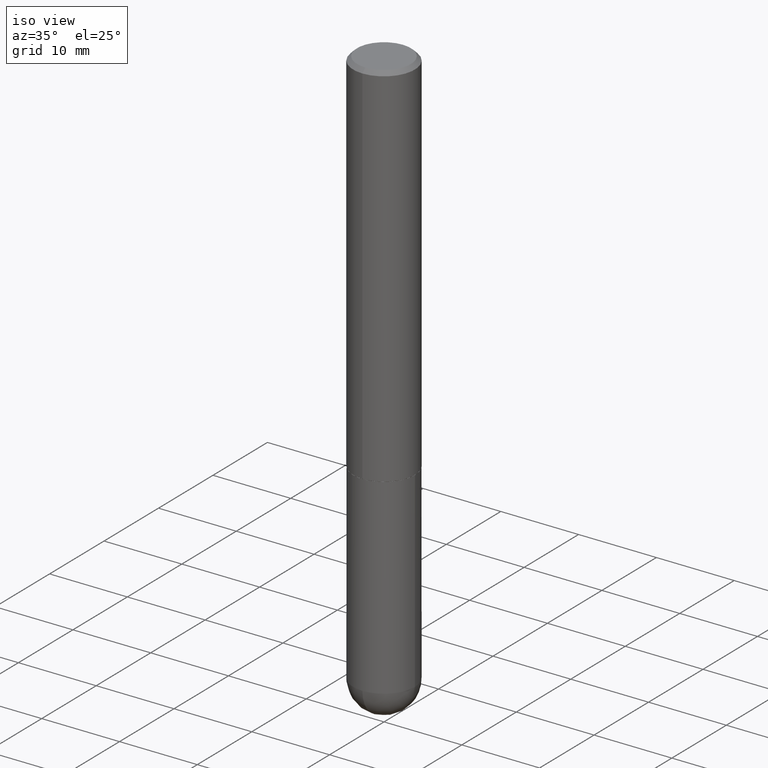
[diagram: clean part render]
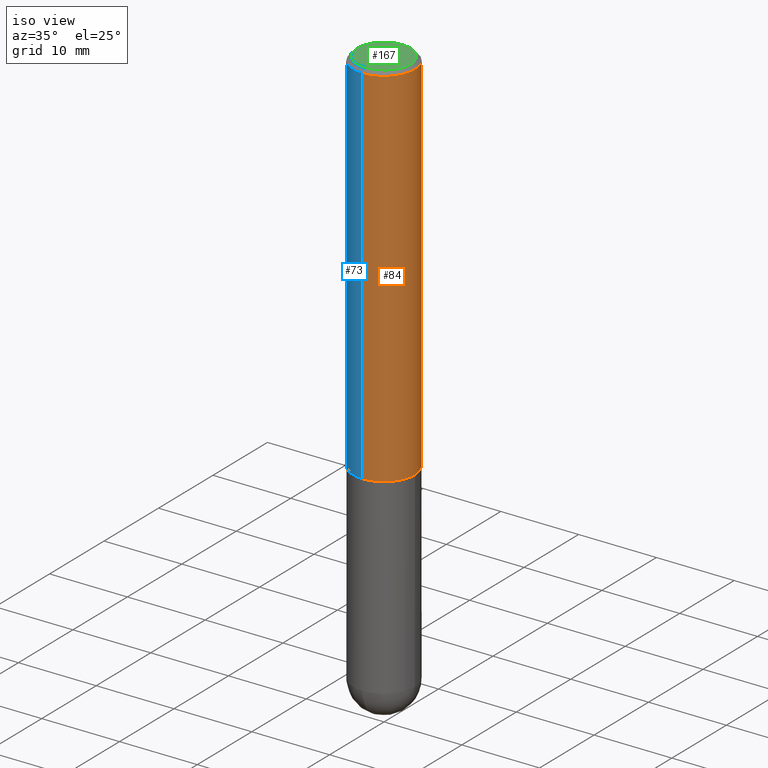
[diagram: same view with three faces highlighted in distinct colors, each labeled with its STEP entity id]
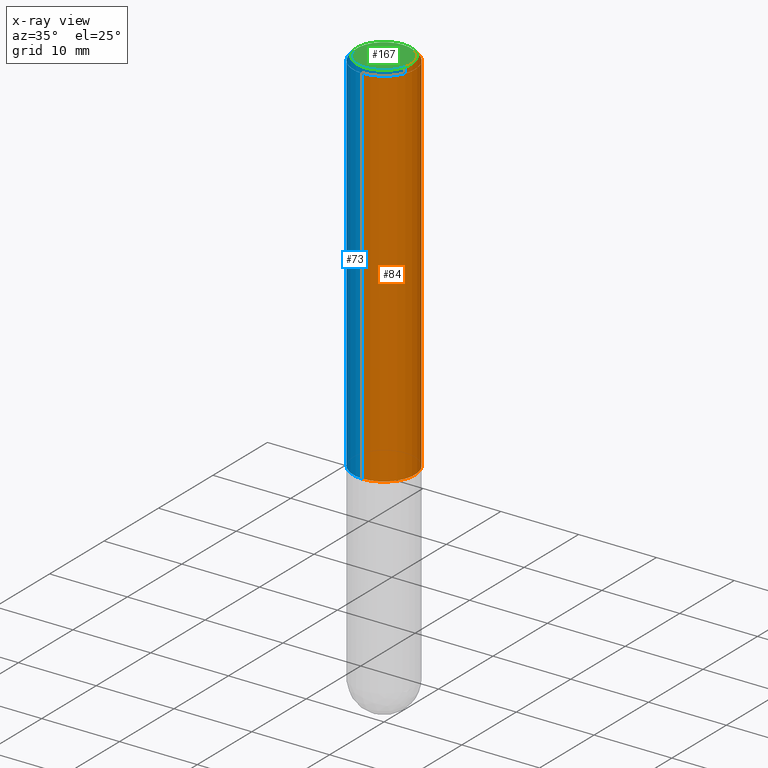
[diagram: x-ray of the same camera — body ghosted, the three highlighted faces saturated]
A machine part, iso view with three faces highlighted in distinct colors.
The next image is the same camera in x-ray (body ghosted, the three faces saturated) — at least one of them is partly hidden behind the body in this view.
Their STEP definitions:

[orange] entity #84 — the highlighted cylindrical surface (partial cylindrical patch) has radius 3.9688 mm, axis along (-0, 0, 1).
#3 = DIRECTION ( 'NONE',  ( -6.982962677686265133E-15, -1.000000000000000000, 3.496765431890258103E-15 ) ) ;
#5 = VERTEX_POINT ( 'NONE', #159 ) ;
#18 = FACE_OUTER_BOUND ( 'NONE', #134, .T. ) ;
#28 = CARTESIAN_POINT ( 'NONE',  ( 4.890760572864907283E-31, -6.983216208334460956E-17, -0.02000000000000003511 ) ) ;
#38 = VERTEX_POINT ( 'NONE', #91 ) ;
#40 = AXIS2_PLACEMENT_3D ( 'NONE', #291, #90, #312 ) ;
#54 = CARTESIAN_POINT ( 'NONE',  ( -1.091087918388479568E-15, -0.1562500000000000833, 5.455637662761290912E-16 ) ) ;
#56 = DIRECTION ( 'NONE',  ( -2.445380286432449473E-29, 3.491608104167224685E-15, 1.000000000000000000 ) ) ;
#79 = CARTESIAN_POINT ( 'NONE',  ( 1.110223024625180601E-15, 0.1562499999999936995, -1.874000000000000554 ) ) ;
#84 = ADVANCED_FACE ( 'NONE', ( #18 ), #390, .T. ) ;
#90 = DIRECTION ( 'NONE',  ( -2.445380286432449473E-29, 3.491608104167224685E-15, 1.000000000000000000 ) ) ;
#91 = CARTESIAN_POINT ( 'NONE',  ( 1.091087918388478976E-15, 0.1562499999999998612, -0.02000000000000057981 ) ) ;
#97 = ORIENTED_EDGE ( 'NONE', *, *, #389, .T. ) ;
#103 = EDGE_CURVE ( 'NONE', #298, #257, #239, .T. ) ;
#109 = CARTESIAN_POINT ( 'NONE',  ( 0.000000000000000000, 0.000000000000000000, 0.000000000000000000 ) ) ;
#121 = DIRECTION ( 'NONE',  ( -6.982962677686265133E-15, -1.000000000000000000, 3.491608104167224290E-15 ) ) ;
#134 = EDGE_LOOP ( 'NONE', ( #293, #97, #325, #357 ) ) ;
#135 = EDGE_CURVE ( 'NONE', #5, #38, #227, .T. ) ;
#144 = VECTOR ( 'NONE', #225, 39.37007874015748143 ) ;
#153 = DIRECTION ( 'NONE',  ( -2.445380286432449473E-29, 3.491608104167224685E-15, 1.000000000000000000 ) ) ;
#159 = CARTESIAN_POINT ( 'NONE',  ( -1.071952812151800821E-15, -0.1562500000000000000, -0.01999999999999948694 ) ) ;
#206 = CARTESIAN_POINT ( 'NONE',  ( -1.091087918388434997E-15, -0.1562500000000068001, -1.873999999999999444 ) ) ;
#225 = DIRECTION ( 'NONE',  ( -2.445380286432449473E-29, 3.491608104167224685E-15, 1.000000000000000000 ) ) ;
#227 = CIRCLE ( 'NONE', #386, 0.1562499999999999445 ) ;
#237 = AXIS2_PLACEMENT_3D ( 'NONE', #109, #153, #121 ) ;
#239 = CIRCLE ( 'NONE', #40, 0.1562500000000002498 ) ;
#257 = VERTEX_POINT ( 'NONE', #79 ) ;
#290 = LINE ( 'NONE', #321, #144 ) ;
#291 = CARTESIAN_POINT ( 'NONE',  ( 4.582642656774410349E-29, -6.543273587209378977E-15, -1.874000000000000110 ) ) ;
#293 = ORIENTED_EDGE ( 'NONE', *, *, #103, .T. ) ;
#298 = VERTEX_POINT ( 'NONE', #206 ) ;
#312 = DIRECTION ( 'NONE',  ( -6.982962677686265922E-15, -1.000000000000000000, 3.496765431890251398E-15 ) ) ;
#321 = CARTESIAN_POINT ( 'NONE',  ( 1.110223024625156738E-15, 0.1562500000000000833, -5.455637662761290912E-16 ) ) ;
#322 = DIRECTION ( 'NONE',  ( -2.445380286432449473E-29, 3.491608104167224685E-15, 1.000000000000000000 ) ) ;
#325 = ORIENTED_EDGE ( 'NONE', *, *, #135, .F. ) ;
#350 = EDGE_CURVE ( 'NONE', #298, #5, #363, .T. ) ;
#357 = ORIENTED_EDGE ( 'NONE', *, *, #350, .F. ) ;
#359 = VECTOR ( 'NONE', #56, 39.37007874015748143 ) ;
#363 = LINE ( 'NONE', #54, #359 ) ;
#386 = AXIS2_PLACEMENT_3D ( 'NONE', #28, #322, #3 ) ;
#389 = EDGE_CURVE ( 'NONE', #257, #38, #290, .T. ) ;
#390 = CYLINDRICAL_SURFACE ( 'NONE', #237, 0.1562500000000000833 ) ;

[blue] entity #73 — the highlighted cylindrical surface (partial cylindrical patch) has radius 3.9688 mm, axis along (-0, 0, 1).
#5 = VERTEX_POINT ( 'NONE', #159 ) ;
#26 = CIRCLE ( 'NONE', #106, 0.1562500000000002498 ) ;
#29 = DIRECTION ( 'NONE',  ( -2.445380286432449473E-29, 3.491608104167224685E-15, 1.000000000000000000 ) ) ;
#38 = VERTEX_POINT ( 'NONE', #91 ) ;
#54 = CARTESIAN_POINT ( 'NONE',  ( -1.091087918388479568E-15, -0.1562500000000000833, 5.455637662761290912E-16 ) ) ;
#56 = DIRECTION ( 'NONE',  ( -2.445380286432449473E-29, 3.491608104167224685E-15, 1.000000000000000000 ) ) ;
#57 = DIRECTION ( 'NONE',  ( -2.445380286432449473E-29, 3.491608104167224685E-15, 1.000000000000000000 ) ) ;
#67 = ORIENTED_EDGE ( 'NONE', *, *, #141, .F. ) ;
#70 = ORIENTED_EDGE ( 'NONE', *, *, #389, .F. ) ;
#73 = ADVANCED_FACE ( 'NONE', ( #122 ), #251, .T. ) ;
#79 = CARTESIAN_POINT ( 'NONE',  ( 1.110223024625180601E-15, 0.1562499999999936995, -1.874000000000000554 ) ) ;
#82 = CIRCLE ( 'NONE', #258, 0.1562499999999999445 ) ;
#91 = CARTESIAN_POINT ( 'NONE',  ( 1.091087918388478976E-15, 0.1562499999999998612, -0.02000000000000057981 ) ) ;
#96 = CARTESIAN_POINT ( 'NONE',  ( 0.000000000000000000, 0.000000000000000000, 0.000000000000000000 ) ) ;
#106 = AXIS2_PLACEMENT_3D ( 'NONE', #116, #57, #315 ) ;
#116 = CARTESIAN_POINT ( 'NONE',  ( 4.582642656774410349E-29, -6.543273587209378977E-15, -1.874000000000000110 ) ) ;
#122 = FACE_OUTER_BOUND ( 'NONE', #349, .T. ) ;
#132 = ORIENTED_EDGE ( 'NONE', *, *, #203, .T. ) ;
#141 = EDGE_CURVE ( 'NONE', #38, #5, #82, .T. ) ;
#144 = VECTOR ( 'NONE', #225, 39.37007874015748143 ) ;
#158 = DIRECTION ( 'NONE',  ( -2.445380286432449473E-29, 3.491608104167224685E-15, 1.000000000000000000 ) ) ;
#159 = CARTESIAN_POINT ( 'NONE',  ( -1.071952812151800821E-15, -0.1562500000000000000, -0.01999999999999948694 ) ) ;
#162 = AXIS2_PLACEMENT_3D ( 'NONE', #96, #29, #288 ) ;
#203 = EDGE_CURVE ( 'NONE', #257, #298, #26, .T. ) ;
#206 = CARTESIAN_POINT ( 'NONE',  ( -1.091087918388434997E-15, -0.1562500000000068001, -1.873999999999999444 ) ) ;
#225 = DIRECTION ( 'NONE',  ( -2.445380286432449473E-29, 3.491608104167224685E-15, 1.000000000000000000 ) ) ;
#251 = CYLINDRICAL_SURFACE ( 'NONE', #162, 0.1562500000000000833 ) ;
#257 = VERTEX_POINT ( 'NONE', #79 ) ;
#258 = AXIS2_PLACEMENT_3D ( 'NONE', #287, #158, #373 ) ;
#287 = CARTESIAN_POINT ( 'NONE',  ( 4.890760572864907283E-31, -6.983216208334460956E-17, -0.02000000000000003511 ) ) ;
#288 = DIRECTION ( 'NONE',  ( -6.982962677686265133E-15, -1.000000000000000000, 3.491608104167224290E-15 ) ) ;
#290 = LINE ( 'NONE', #321, #144 ) ;
#298 = VERTEX_POINT ( 'NONE', #206 ) ;
#315 = DIRECTION ( 'NONE',  ( -6.982962677686265922E-15, -1.000000000000000000, 3.496765431890251398E-15 ) ) ;
#321 = CARTESIAN_POINT ( 'NONE',  ( 1.110223024625156738E-15, 0.1562500000000000833, -5.455637662761290912E-16 ) ) ;
#349 = EDGE_LOOP ( 'NONE', ( #70, #132, #361, #67 ) ) ;
#350 = EDGE_CURVE ( 'NONE', #298, #5, #363, .T. ) ;
#359 = VECTOR ( 'NONE', #56, 39.37007874015748143 ) ;
#361 = ORIENTED_EDGE ( 'NONE', *, *, #350, .T. ) ;
#363 = LINE ( 'NONE', #54, #359 ) ;
#373 = DIRECTION ( 'NONE',  ( -6.982962677686265133E-15, -1.000000000000000000, 3.496765431890258103E-15 ) ) ;
#389 = EDGE_CURVE ( 'NONE', #257, #38, #290, .T. ) ;

[green] entity #167 — the highlighted planar face has unit normal (0, -0, -1).
#1 = DIRECTION ( 'NONE',  ( -6.982962677686265133E-15, -1.000000000000000000, 3.491608104167224685E-15 ) ) ;
#10 = VERTEX_POINT ( 'NONE', #266 ) ;
#16 = DIRECTION ( 'NONE',  ( -2.445380286432449473E-29, 3.491608104167224685E-15, 1.000000000000000000 ) ) ;
#64 = CARTESIAN_POINT ( 'NONE',  ( -3.340625975209204368E-45, 4.769874359725358949E-31, 1.366096714586189504E-16 ) ) ;
#85 = FACE_OUTER_BOUND ( 'NONE', #195, .T. ) ;
#95 = PLANE ( 'NONE',  #276 ) ;
#126 = DIRECTION ( 'NONE',  ( -2.445380286432449473E-29, 3.491608104167224685E-15, 1.000000000000000000 ) ) ;
#140 = DIRECTION ( 'NONE',  ( -6.982962677686265133E-15, -1.000000000000000000, 3.491608104167224685E-15 ) ) ;
#157 = EDGE_CURVE ( 'NONE', #199, #10, #358, .T. ) ;
#165 = AXIS2_PLACEMENT_3D ( 'NONE', #374, #16, #140 ) ;
#167 = ADVANCED_FACE ( 'NONE', ( #85 ), #95, .F. ) ;
#195 = EDGE_LOOP ( 'NONE', ( #402, #262 ) ) ;
#199 = VERTEX_POINT ( 'NONE', #208 ) ;
#208 = CARTESIAN_POINT ( 'NONE',  ( -1.003347832174085292E-15, -0.1362499999999998157, 6.123412756514026555E-16 ) ) ;
#216 = DIRECTION ( 'NONE',  ( 2.445380286432449473E-29, -3.491608104167224685E-15, -1.000000000000000000 ) ) ;
#262 = ORIENTED_EDGE ( 'NONE', *, *, #157, .T. ) ;
#266 = CARTESIAN_POINT ( 'NONE',  ( 1.021258291611615678E-15, 0.1362499999999998157, -3.391219327341647547E-16 ) ) ;
#276 = AXIS2_PLACEMENT_3D ( 'NONE', #282, #216, #364 ) ;
#279 = EDGE_CURVE ( 'NONE', #10, #199, #283, .T. ) ;
#282 = CARTESIAN_POINT ( 'NONE',  ( 9.514286648347523799E-16, 0.1362499999999998157, -4.074267684634742669E-16 ) ) ;
#283 = CIRCLE ( 'NONE', #165, 0.1362499999999998157 ) ;
#330 = AXIS2_PLACEMENT_3D ( 'NONE', #64, #126, #1 ) ;
#358 = CIRCLE ( 'NONE', #330, 0.1362499999999998157 ) ;
#364 = DIRECTION ( 'NONE',  ( 6.982962677686265922E-15, 1.000000000000000000, -3.491608104167224685E-15 ) ) ;
#374 = CARTESIAN_POINT ( 'NONE',  ( -3.340625975209204368E-45, 4.769874359725358949E-31, 1.366096714586189504E-16 ) ) ;
#402 = ORIENTED_EDGE ( 'NONE', *, *, #279, .T. ) ;